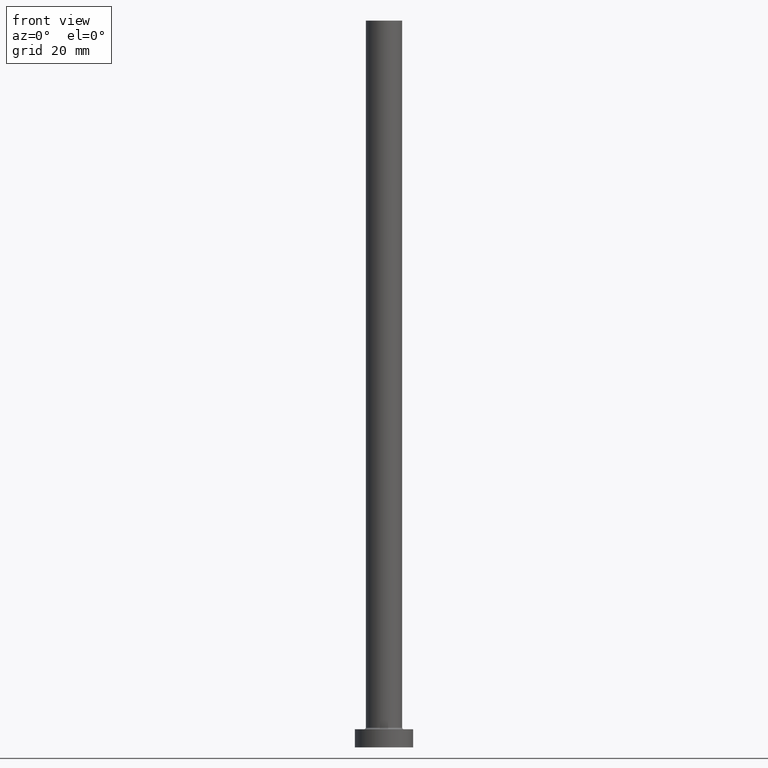
[diagram: clean part render]
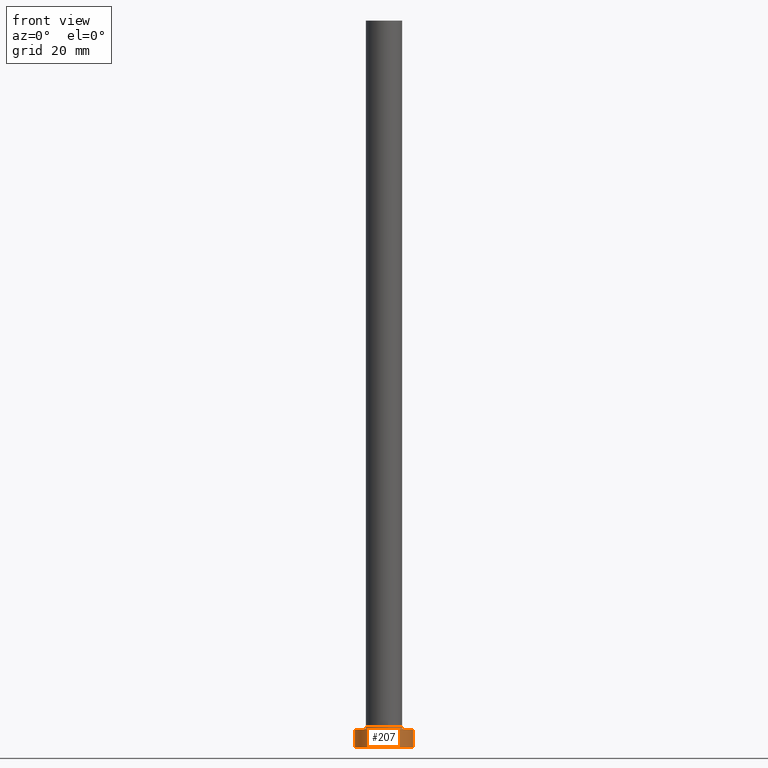
[diagram: same view with one face highlighted and labeled with its STEP entity id]
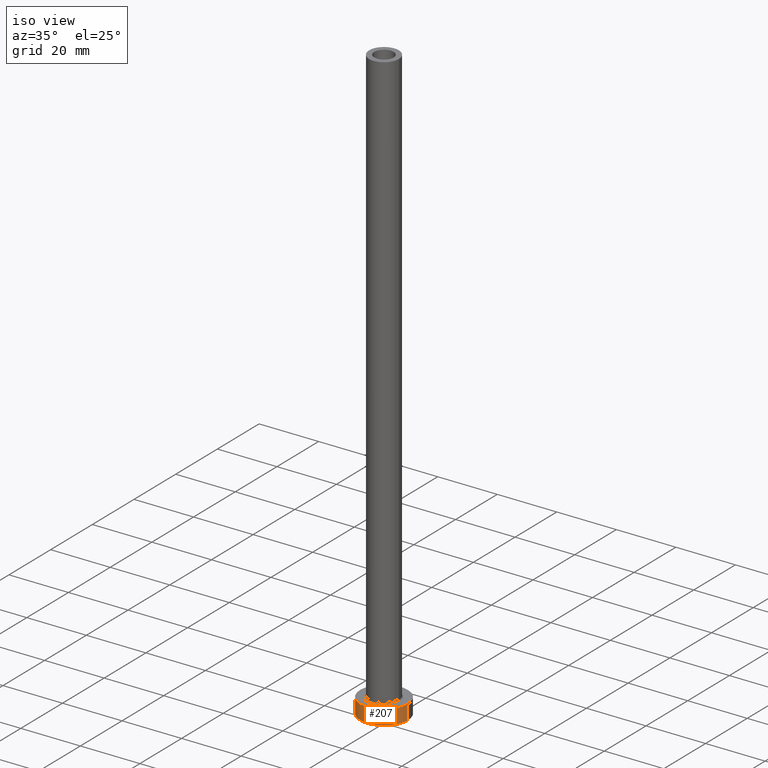
[diagram: same view with one face highlighted and labeled with its STEP entity id]
A machine part, front view. The second image highlights one B-rep face of the part: STEP entity #207.
A second angle (iso view) of the same face is appended — the face is thin or edge-on in the first view.
In plain terms, the highlighted cylindrical surface (edge-blend (fillet) strip) has radius 8 mm, axis along (-0, -0, -1).
Its self-contained STEP definition (entity closure, byte-faithful):
#15 = DIRECTION ( 'NONE',  ( -0.000000000000000000, -0.000000000000000000, -1.000000000000000000 ) ) ;
#20 = LINE ( 'NONE', #161, #91 ) ;
#27 = DIRECTION ( 'NONE',  ( 0.000000000000000000, 0.000000000000000000, 1.000000000000000000 ) ) ;
#35 = CIRCLE ( 'NONE', #69, 8.000000000000000000 ) ;
#58 = ORIENTED_EDGE ( 'NONE', *, *, #444, .F. ) ;
#69 = AXIS2_PLACEMENT_3D ( 'NONE', #346, #27, #165 ) ;
#74 = EDGE_LOOP ( 'NONE', ( #58, #342, #395, #391 ) ) ;
#89 = CARTESIAN_POINT ( 'NONE',  ( 0.000000000000000000, 0.000000000000000000, 5.000000000000000000 ) ) ;
#91 = VECTOR ( 'NONE', #15, 1000.000000000000000 ) ;
#110 = VERTEX_POINT ( 'NONE', #155 ) ;
#140 = VERTEX_POINT ( 'NONE', #160 ) ;
#150 = FACE_OUTER_BOUND ( 'NONE', #74, .T. ) ;
#155 = CARTESIAN_POINT ( 'NONE',  ( 8.000000000000000000, 9.797174393178825657E-16, 0.000000000000000000 ) ) ;
#160 = CARTESIAN_POINT ( 'NONE',  ( -8.000000000000000000, 0.000000000000000000, 5.000000000000000000 ) ) ;
#161 = CARTESIAN_POINT ( 'NONE',  ( -8.000000000000000000, 0.000000000000000000, 5.000000000000000000 ) ) ;
#165 = DIRECTION ( 'NONE',  ( 1.000000000000000000, 0.000000000000000000, 0.000000000000000000 ) ) ;
#166 = DIRECTION ( 'NONE',  ( 0.000000000000000000, 0.000000000000000000, 1.000000000000000000 ) ) ;
#198 = VERTEX_POINT ( 'NONE', #230 ) ;
#201 = DIRECTION ( 'NONE',  ( -0.000000000000000000, -0.000000000000000000, -1.000000000000000000 ) ) ;
#207 = ADVANCED_FACE ( 'NONE', ( #150 ), #369, .T. ) ;
#227 = DIRECTION ( 'NONE',  ( -0.000000000000000000, -0.000000000000000000, -1.000000000000000000 ) ) ;
#230 = CARTESIAN_POINT ( 'NONE',  ( 8.000000000000000000, 9.797174393178825657E-16, 5.000000000000000000 ) ) ;
#237 = LINE ( 'NONE', #422, #446 ) ;
#254 = VERTEX_POINT ( 'NONE', #307 ) ;
#262 = AXIS2_PLACEMENT_3D ( 'NONE', #461, #166, #280 ) ;
#280 = DIRECTION ( 'NONE',  ( 1.000000000000000000, 0.000000000000000000, 0.000000000000000000 ) ) ;
#281 = EDGE_CURVE ( 'NONE', #140, #198, #403, .T. ) ;
#307 = CARTESIAN_POINT ( 'NONE',  ( -8.000000000000000000, 0.000000000000000000, 0.000000000000000000 ) ) ;
#311 = AXIS2_PLACEMENT_3D ( 'NONE', #89, #227, #371 ) ;
#342 = ORIENTED_EDGE ( 'NONE', *, *, #281, .F. ) ;
#346 = CARTESIAN_POINT ( 'NONE',  ( 0.000000000000000000, 0.000000000000000000, 0.000000000000000000 ) ) ;
#358 = EDGE_CURVE ( 'NONE', #140, #254, #20, .T. ) ;
#369 = CYLINDRICAL_SURFACE ( 'NONE', #311, 8.000000000000000000 ) ;
#371 = DIRECTION ( 'NONE',  ( -1.000000000000000000, 0.000000000000000000, 0.000000000000000000 ) ) ;
#391 = ORIENTED_EDGE ( 'NONE', *, *, #453, .T. ) ;
#395 = ORIENTED_EDGE ( 'NONE', *, *, #358, .T. ) ;
#403 = CIRCLE ( 'NONE', #262, 8.000000000000000000 ) ;
#422 = CARTESIAN_POINT ( 'NONE',  ( 8.000000000000000000, 9.797174393178825657E-16, 5.000000000000000000 ) ) ;
#444 = EDGE_CURVE ( 'NONE', #198, #110, #237, .T. ) ;
#446 = VECTOR ( 'NONE', #201, 1000.000000000000000 ) ;
#453 = EDGE_CURVE ( 'NONE', #254, #110, #35, .T. ) ;
#461 = CARTESIAN_POINT ( 'NONE',  ( 0.000000000000000000, 0.000000000000000000, 5.000000000000000000 ) ) ;